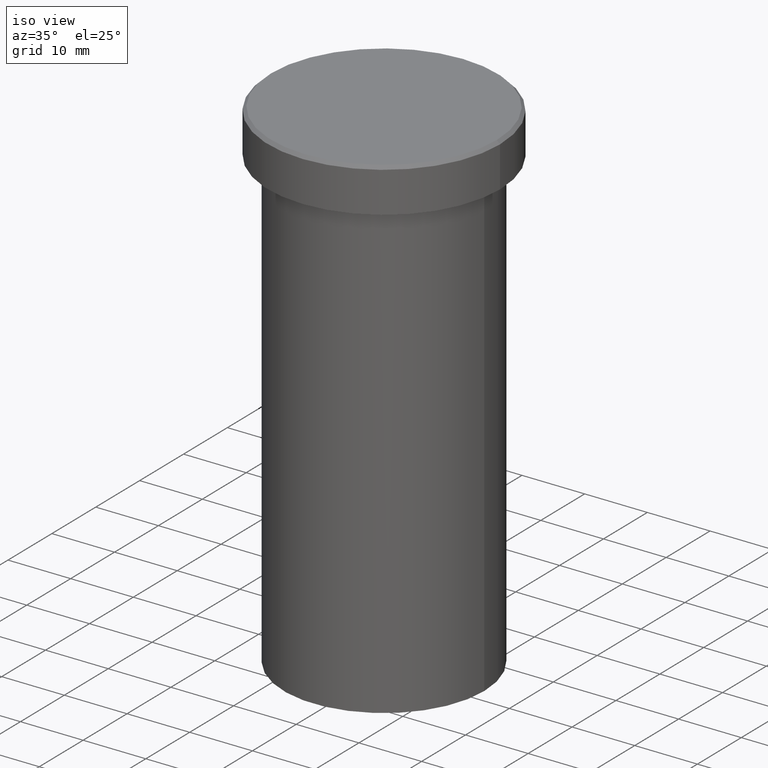
[diagram: clean part render]
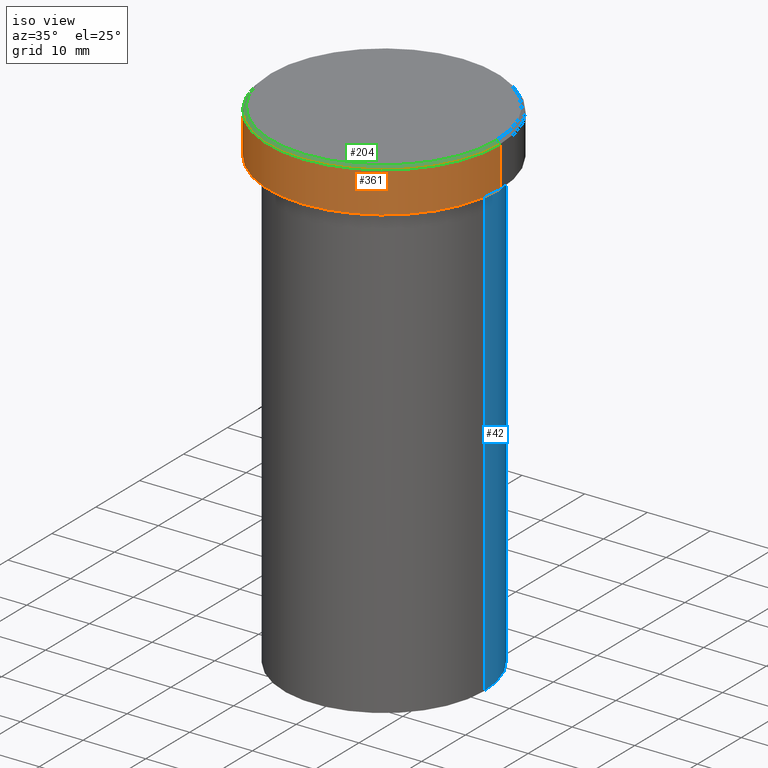
[diagram: same view with three faces highlighted in distinct colors, each labeled with its STEP entity id]
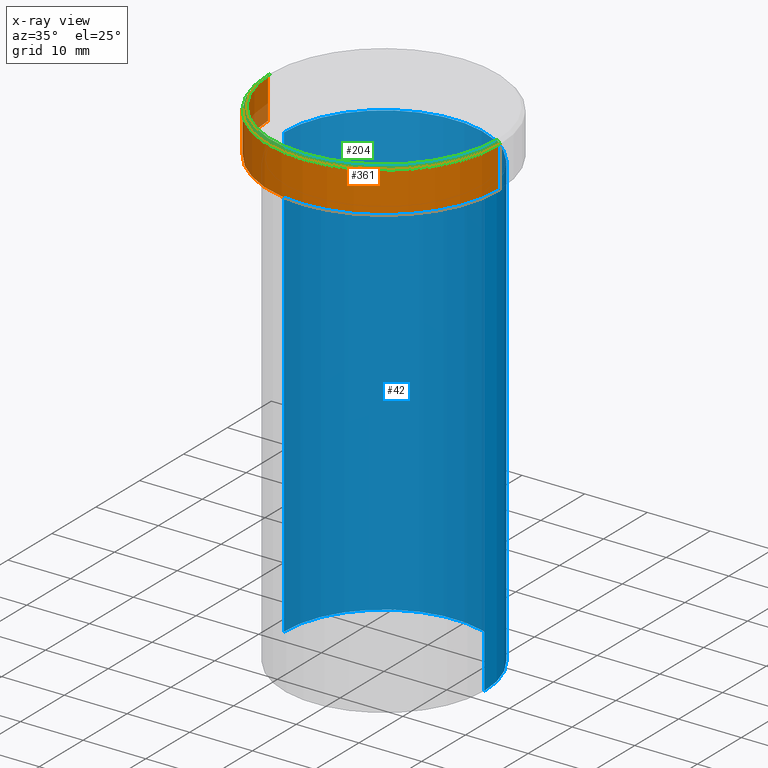
[diagram: x-ray of the same camera — body ghosted, the three highlighted faces saturated]
A machine part, iso view with three faces highlighted in distinct colors.
The next image is the same camera in x-ray (body ghosted, the three faces saturated) — at least one of them is partly hidden behind the body in this view.
Their STEP definitions:

[orange] entity #361 — the highlighted cylindrical surface (partial cylindrical patch) has radius 18.5 mm, axis along (-0, -0, 1).
#1 = CARTESIAN_POINT ( 'NONE',  ( 18.50000000000000000, 0.000000000000000000, -6.999999999999998224 ) ) ;
#34 = DIRECTION ( 'NONE',  ( 0.000000000000000000, 0.000000000000000000, -1.000000000000000000 ) ) ;
#51 = DIRECTION ( 'NONE',  ( -0.000000000000000000, -0.000000000000000000, 1.000000000000000000 ) ) ;
#55 = FACE_OUTER_BOUND ( 'NONE', #124, .T. ) ;
#66 = DIRECTION ( 'NONE',  ( -0.000000000000000000, -0.000000000000000000, 1.000000000000000000 ) ) ;
#67 = AXIS2_PLACEMENT_3D ( 'NONE', #276, #215, #220 ) ;
#79 = VERTEX_POINT ( 'NONE', #1 ) ;
#81 = ORIENTED_EDGE ( 'NONE', *, *, #97, .T. ) ;
#89 = VECTOR ( 'NONE', #393, 1000.000000000000000 ) ;
#97 = EDGE_CURVE ( 'NONE', #409, #79, #397, .T. ) ;
#110 = EDGE_CURVE ( 'NONE', #221, #372, #382, .T. ) ;
#121 = CYLINDRICAL_SURFACE ( 'NONE', #67, 18.50000000000000000 ) ;
#124 = EDGE_LOOP ( 'NONE', ( #148, #81, #349, #205 ) ) ;
#146 = AXIS2_PLACEMENT_3D ( 'NONE', #163, #66, #387 ) ;
#148 = ORIENTED_EDGE ( 'NONE', *, *, #327, .F. ) ;
#163 = CARTESIAN_POINT ( 'NONE',  ( 0.000000000000000000, 0.000000000000000000, -6.999999999999998224 ) ) ;
#164 = VECTOR ( 'NONE', #51, 1000.000000000000000 ) ;
#205 = ORIENTED_EDGE ( 'NONE', *, *, #110, .T. ) ;
#211 = CARTESIAN_POINT ( 'NONE',  ( -18.50000000000000000, 2.265596578422603396E-15, 0.000000000000000000 ) ) ;
#215 = DIRECTION ( 'NONE',  ( -0.000000000000000000, -0.000000000000000000, 1.000000000000000000 ) ) ;
#220 = DIRECTION ( 'NONE',  ( 1.000000000000000000, 0.000000000000000000, 0.000000000000000000 ) ) ;
#221 = VERTEX_POINT ( 'NONE', #321 ) ;
#236 = CARTESIAN_POINT ( 'NONE',  ( 18.50000000000000000, 0.000000000000000000, 0.000000000000000000 ) ) ;
#247 = CARTESIAN_POINT ( 'NONE',  ( -18.50000000000000000, 2.265596578422603396E-15, -0.5000000000000213163 ) ) ;
#261 = DIRECTION ( 'NONE',  ( 1.000000000000000000, 0.000000000000000000, 0.000000000000000000 ) ) ;
#263 = EDGE_CURVE ( 'NONE', #79, #221, #267, .T. ) ;
#267 = LINE ( 'NONE', #236, #89 ) ;
#276 = CARTESIAN_POINT ( 'NONE',  ( 0.000000000000000000, 0.000000000000000000, 0.000000000000000000 ) ) ;
#321 = CARTESIAN_POINT ( 'NONE',  ( 18.50000000000000000, 0.000000000000000000, -0.5000000000000213163 ) ) ;
#326 = CARTESIAN_POINT ( 'NONE',  ( 0.000000000000000000, 0.000000000000000000, -0.5000000000000213163 ) ) ;
#327 = EDGE_CURVE ( 'NONE', #409, #372, #369, .T. ) ;
#349 = ORIENTED_EDGE ( 'NONE', *, *, #263, .T. ) ;
#361 = ADVANCED_FACE ( 'NONE', ( #55 ), #121, .T. ) ;
#369 = LINE ( 'NONE', #211, #164 ) ;
#372 = VERTEX_POINT ( 'NONE', #247 ) ;
#382 = CIRCLE ( 'NONE', #388, 18.50000000000000000 ) ;
#387 = DIRECTION ( 'NONE',  ( 1.000000000000000000, 0.000000000000000000, 0.000000000000000000 ) ) ;
#388 = AXIS2_PLACEMENT_3D ( 'NONE', #326, #34, #261 ) ;
#393 = DIRECTION ( 'NONE',  ( -0.000000000000000000, -0.000000000000000000, 1.000000000000000000 ) ) ;
#397 = CIRCLE ( 'NONE', #146, 18.50000000000000000 ) ;
#402 = CARTESIAN_POINT ( 'NONE',  ( -18.50000000000000000, 2.265596578422603396E-15, -6.999999999999998224 ) ) ;
#409 = VERTEX_POINT ( 'NONE', #402 ) ;

[blue] entity #42 — the highlighted cylindrical surface (partial cylindrical patch) has radius 16 mm, axis along (-0, -0, 1).
#22 = DIRECTION ( 'NONE',  ( 1.000000000000000000, 0.000000000000000000, 0.000000000000000000 ) ) ;
#24 = DIRECTION ( 'NONE',  ( -0.000000000000000000, -0.000000000000000000, 1.000000000000000000 ) ) ;
#37 = EDGE_CURVE ( 'NONE', #379, #302, #185, .T. ) ;
#42 = ADVANCED_FACE ( 'NONE', ( #342 ), #246, .T. ) ;
#50 = EDGE_CURVE ( 'NONE', #302, #307, #375, .T. ) ;
#53 = ORIENTED_EDGE ( 'NONE', *, *, #338, .F. ) ;
#56 = DIRECTION ( 'NONE',  ( -0.000000000000000000, -0.000000000000000000, 1.000000000000000000 ) ) ;
#88 = DIRECTION ( 'NONE',  ( 1.000000000000000000, 0.000000000000000000, 0.000000000000000000 ) ) ;
#94 = AXIS2_PLACEMENT_3D ( 'NONE', #180, #318, #88 ) ;
#113 = ORIENTED_EDGE ( 'NONE', *, *, #37, .T. ) ;
#142 = CARTESIAN_POINT ( 'NONE',  ( -16.00000000000000000, 1.959434878635765131E-15, -80.00000000000000000 ) ) ;
#167 = EDGE_LOOP ( 'NONE', ( #113, #363, #271, #53 ) ) ;
#176 = LINE ( 'NONE', #249, #178 ) ;
#178 = VECTOR ( 'NONE', #374, 1000.000000000000000 ) ;
#179 = DIRECTION ( 'NONE',  ( 1.000000000000000000, 0.000000000000000000, 0.000000000000000000 ) ) ;
#180 = CARTESIAN_POINT ( 'NONE',  ( 0.000000000000000000, 0.000000000000000000, -80.00000000000000000 ) ) ;
#181 = DIRECTION ( 'NONE',  ( -0.000000000000000000, -0.000000000000000000, 1.000000000000000000 ) ) ;
#182 = CARTESIAN_POINT ( 'NONE',  ( 0.000000000000000000, 0.000000000000000000, 0.000000000000000000 ) ) ;
#185 = CIRCLE ( 'NONE', #94, 16.00000000000000000 ) ;
#213 = CARTESIAN_POINT ( 'NONE',  ( 0.000000000000000000, 0.000000000000000000, -8.000000000000000000 ) ) ;
#246 = CYLINDRICAL_SURFACE ( 'NONE', #324, 16.00000000000000000 ) ;
#249 = CARTESIAN_POINT ( 'NONE',  ( 16.00000000000000000, 0.000000000000000000, 0.000000000000000000 ) ) ;
#252 = CARTESIAN_POINT ( 'NONE',  ( 16.00000000000000000, 0.000000000000000000, -80.00000000000000000 ) ) ;
#271 = ORIENTED_EDGE ( 'NONE', *, *, #391, .F. ) ;
#284 = CARTESIAN_POINT ( 'NONE',  ( -16.00000000000000000, 1.959434878635765131E-15, 0.000000000000000000 ) ) ;
#291 = VECTOR ( 'NONE', #24, 1000.000000000000000 ) ;
#302 = VERTEX_POINT ( 'NONE', #142 ) ;
#304 = CIRCLE ( 'NONE', #383, 16.00000000000000000 ) ;
#307 = VERTEX_POINT ( 'NONE', #366 ) ;
#317 = CARTESIAN_POINT ( 'NONE',  ( 16.00000000000000000, 0.000000000000000000, -8.000000000000000000 ) ) ;
#318 = DIRECTION ( 'NONE',  ( -0.000000000000000000, -0.000000000000000000, 1.000000000000000000 ) ) ;
#324 = AXIS2_PLACEMENT_3D ( 'NONE', #182, #56, #22 ) ;
#338 = EDGE_CURVE ( 'NONE', #379, #399, #176, .T. ) ;
#342 = FACE_OUTER_BOUND ( 'NONE', #167, .T. ) ;
#363 = ORIENTED_EDGE ( 'NONE', *, *, #50, .T. ) ;
#366 = CARTESIAN_POINT ( 'NONE',  ( -16.00000000000000000, 1.959434878635765131E-15, -8.000000000000000000 ) ) ;
#374 = DIRECTION ( 'NONE',  ( -0.000000000000000000, -0.000000000000000000, 1.000000000000000000 ) ) ;
#375 = LINE ( 'NONE', #284, #291 ) ;
#379 = VERTEX_POINT ( 'NONE', #252 ) ;
#383 = AXIS2_PLACEMENT_3D ( 'NONE', #213, #181, #179 ) ;
#391 = EDGE_CURVE ( 'NONE', #399, #307, #304, .T. ) ;
#399 = VERTEX_POINT ( 'NONE', #317 ) ;

[green] entity #204 — the highlighted conical surface has half-angle 45 deg.
#17 = ORIENTED_EDGE ( 'NONE', *, *, #282, .F. ) ;
#34 = DIRECTION ( 'NONE',  ( 0.000000000000000000, 0.000000000000000000, -1.000000000000000000 ) ) ;
#46 = LINE ( 'NONE', #77, #128 ) ;
#64 = CARTESIAN_POINT ( 'NONE',  ( -17.99999999999998934, 0.000000000000000000, 0.000000000000000000 ) ) ;
#77 = CARTESIAN_POINT ( 'NONE',  ( 17.99999999999998934, 2.204364238465234244E-15, 0.000000000000000000 ) ) ;
#109 = DIRECTION ( 'NONE',  ( 0.7071067811865402453, 8.659560562354844111E-17, -0.7071067811865549002 ) ) ;
#110 = EDGE_CURVE ( 'NONE', #221, #372, #382, .T. ) ;
#127 = DIRECTION ( 'NONE',  ( -0.7071067811865402453, 0.000000000000000000, -0.7071067811865549002 ) ) ;
#128 = VECTOR ( 'NONE', #109, 1000.000000000000114 ) ;
#130 = EDGE_CURVE ( 'NONE', #311, #372, #351, .T. ) ;
#135 = CONICAL_SURFACE ( 'NONE', #357, 17.99999999999998934, 0.7853981633974380649 ) ;
#141 = CIRCLE ( 'NONE', #325, 17.99999999999998934 ) ;
#166 = DIRECTION ( 'NONE',  ( -0.000000000000000000, -0.000000000000000000, 1.000000000000000000 ) ) ;
#171 = CARTESIAN_POINT ( 'NONE',  ( -17.99999999999998934, 0.000000000000000000, 0.000000000000000000 ) ) ;
#188 = DIRECTION ( 'NONE',  ( -1.000000000000000000, 0.000000000000000000, 0.000000000000000000 ) ) ;
#203 = CARTESIAN_POINT ( 'NONE',  ( 0.000000000000000000, 0.000000000000000000, 0.000000000000000000 ) ) ;
#204 = ADVANCED_FACE ( 'NONE', ( #259 ), #135, .T. ) ;
#210 = VECTOR ( 'NONE', #127, 1000.000000000000114 ) ;
#221 = VERTEX_POINT ( 'NONE', #321 ) ;
#224 = CARTESIAN_POINT ( 'NONE',  ( 0.000000000000000000, 0.000000000000000000, 0.000000000000000000 ) ) ;
#238 = ORIENTED_EDGE ( 'NONE', *, *, #110, .F. ) ;
#247 = CARTESIAN_POINT ( 'NONE',  ( -18.50000000000000000, 2.265596578422603396E-15, -0.5000000000000213163 ) ) ;
#251 = ORIENTED_EDGE ( 'NONE', *, *, #308, .F. ) ;
#259 = FACE_OUTER_BOUND ( 'NONE', #392, .T. ) ;
#261 = DIRECTION ( 'NONE',  ( 1.000000000000000000, 0.000000000000000000, 0.000000000000000000 ) ) ;
#282 = EDGE_CURVE ( 'NONE', #311, #370, #141, .T. ) ;
#285 = ORIENTED_EDGE ( 'NONE', *, *, #130, .T. ) ;
#308 = EDGE_CURVE ( 'NONE', #370, #221, #46, .T. ) ;
#309 = DIRECTION ( 'NONE',  ( 1.000000000000000000, 0.000000000000000000, 0.000000000000000000 ) ) ;
#311 = VERTEX_POINT ( 'NONE', #171 ) ;
#321 = CARTESIAN_POINT ( 'NONE',  ( 18.50000000000000000, 0.000000000000000000, -0.5000000000000213163 ) ) ;
#325 = AXIS2_PLACEMENT_3D ( 'NONE', #203, #166, #309 ) ;
#326 = CARTESIAN_POINT ( 'NONE',  ( 0.000000000000000000, 0.000000000000000000, -0.5000000000000213163 ) ) ;
#341 = CARTESIAN_POINT ( 'NONE',  ( 17.99999999999998934, 2.234980408443918820E-15, 0.000000000000000000 ) ) ;
#348 = DIRECTION ( 'NONE',  ( 0.000000000000000000, 0.000000000000000000, -1.000000000000000000 ) ) ;
#351 = LINE ( 'NONE', #64, #210 ) ;
#357 = AXIS2_PLACEMENT_3D ( 'NONE', #224, #348, #188 ) ;
#370 = VERTEX_POINT ( 'NONE', #341 ) ;
#372 = VERTEX_POINT ( 'NONE', #247 ) ;
#382 = CIRCLE ( 'NONE', #388, 18.50000000000000000 ) ;
#388 = AXIS2_PLACEMENT_3D ( 'NONE', #326, #34, #261 ) ;
#392 = EDGE_LOOP ( 'NONE', ( #251, #17, #285, #238 ) ) ;